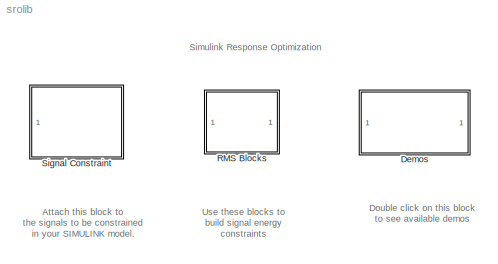
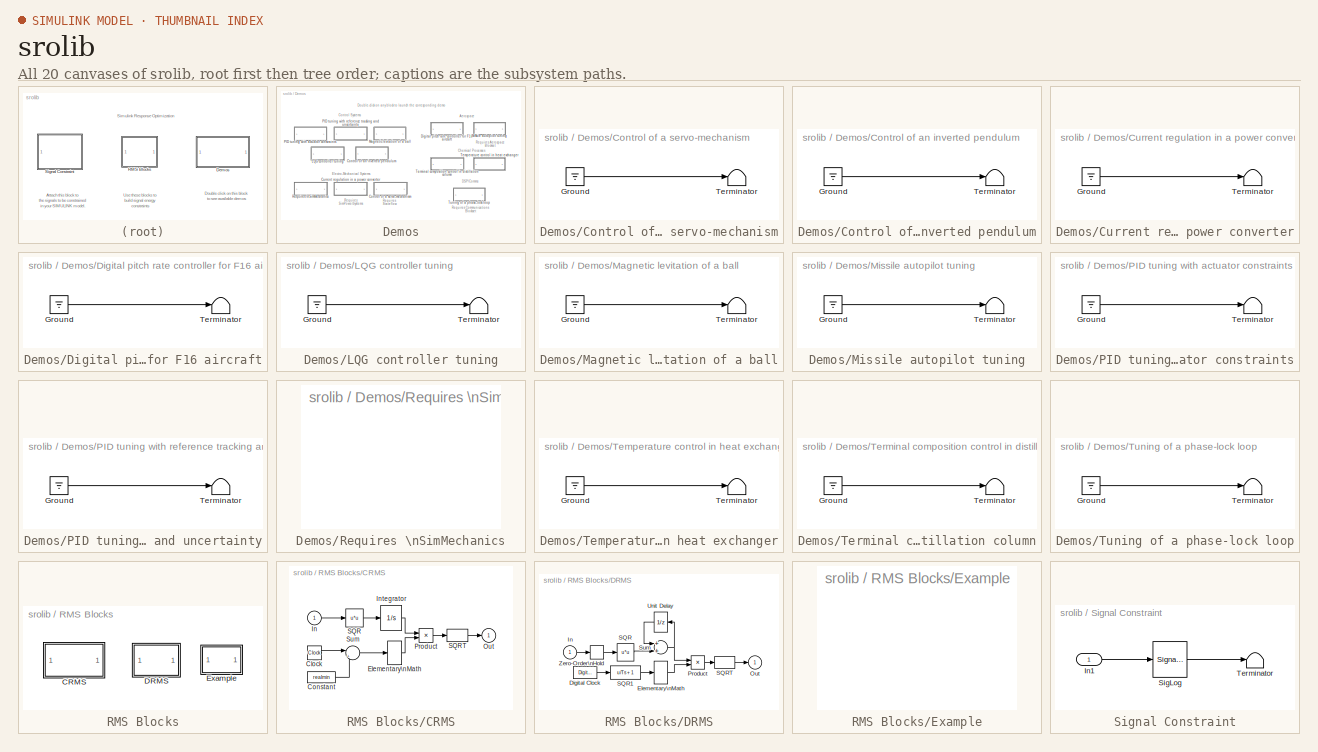
[diagram: thumbnail index - all 20 canvases of the model, root first then tree order]
MODEL srolib
KIND library
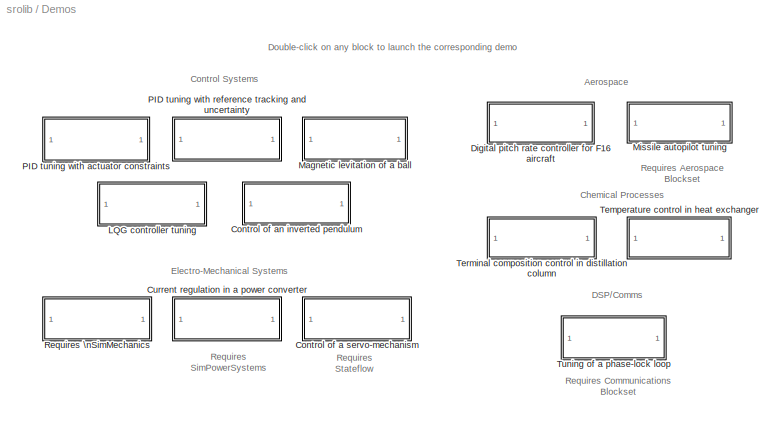
BLOCK [SubSystem] Demos
  MaskDisplay = disp('Response\\nOptimization\\nDemos')
  MaskIconFrame = on
  MaskIconOpaque = on
  MaskIconRotate = none
  MaskIconUnits = autoscale
  MinAlgLoopOccurrences = off
  Ports = []
  PropExecContextAcrossSSBoundary = on
  RTWSystemCode = Auto
  TreatAsAtomicUnit = off
BLOCK [SubSystem] Demos/Control of a servo-mechanism
  MaskDisplay = disp('Servomechanism')
  MaskEnableString = on
  MaskIconFrame = on
  MaskIconOpaque = on
  MaskIconRotate = none
  MaskIconUnits = autoscale
  MaskPromptString = Nedded to invoke correct OpenFcn from Browser:
  MaskStyleString = edit
  MaskToolTipString = on
  MaskTunableValueString = off
  MaskVariables = A=@1;
  MaskVisibilityString = on
  MinAlgLoopOccurrences = off
  OpenFcn = open_system('servo_demo')
  Ports = []
  PropExecContextAcrossSSBoundary = on
  RTWSystemCode = Auto
  TreatAsAtomicUnit = off
BLOCK [Ground] Demos/Control of a servo-mechanism/Ground
BLOCK [Terminator] Demos/Control of a servo-mechanism/Terminator
BLOCK [SubSystem] Demos/Control of an inverted pendulum
  MaskDisplay = disp('Inverted Pendulum')
  MaskEnableString = on
  MaskIconFrame = on
  MaskIconOpaque = on
  MaskIconRotate = none
  MaskIconUnits = autoscale
  MaskPromptString = Nedded to invoke correct OpenFcn from Browser:
  MaskStyleString = edit
  MaskToolTipString = on
  MaskTunableValueString = off
  MaskVariables = A=@1;
  MaskVisibilityString = on
  MinAlgLoopOccurrences = off
  OpenFcn = open_system('pendulum_demo')
  Ports = []
  PropExecContextAcrossSSBoundary = on
  RTWSystemCode = Auto
  TreatAsAtomicUnit = off
BLOCK [Ground] Demos/Control of an inverted pendulum/Ground
BLOCK [Terminator] Demos/Control of an inverted pendulum/Terminator
BLOCK [SubSystem] Demos/Current regulation in a power converter
  MaskDisplay = disp('Power Converter')
  MaskEnableString = on
  MaskIconFrame = on
  MaskIconOpaque = on
  MaskIconRotate = none
  MaskIconUnits = autoscale
  MaskPromptString = Nedded to invoke correct OpenFcn from Browser:
  MaskStyleString = edit
  MaskToolTipString = on
  MaskTunableValueString = off
  MaskVariables = A=@1;
  MaskVisibilityString = on
  MinAlgLoopOccurrences = off
  OpenFcn = open_system('power_demo')
  Ports = []
  PropExecContextAcrossSSBoundary = on
  RTWSystemCode = Auto
  TreatAsAtomicUnit = off
BLOCK [Ground] Demos/Current regulation in a power converter/Ground
BLOCK [Terminator] Demos/Current regulation in a power converter/Terminator
BLOCK [SubSystem] Demos/Digital pitch rate controller for F16 aircraft
  MaskDisplay = disp('Pitch Rate Control')
  MaskEnableString = on
  MaskIconFrame = on
  MaskIconOpaque = on
  MaskIconRotate = none
  MaskIconUnits = autoscale
  MaskPromptString = Nedded to invoke correct OpenFcn from Browser:
  MaskStyleString = edit
  MaskToolTipString = on
  MaskTunableValueString = off
  MaskVariables = A=@1;
  MaskVisibilityString = on
  MinAlgLoopOccurrences = off
  OpenFcn = open_system('pitchrate_demo')
  Ports = []
  PropExecContextAcrossSSBoundary = on
  RTWSystemCode = Auto
  TreatAsAtomicUnit = off
BLOCK [Ground] Demos/Digital pitch rate controller for F16 aircraft/Ground
BLOCK [Terminator] Demos/Digital pitch rate controller for F16 aircraft/Terminator
BLOCK [SubSystem] Demos/LQG controller tuning
  MaskDisplay = disp('LQG Controller')
  MaskEnableString = on
  MaskIconFrame = on
  MaskIconOpaque = on
  MaskIconRotate = none
  MaskIconUnits = autoscale
  MaskPromptString = Nedded to invoke correct OpenFcn from Browser:
  MaskStyleString = edit
  MaskToolTipString = on
  MaskTunableValueString = off
  MaskVariables = A=@1;
  MaskVisibilityString = on
  MinAlgLoopOccurrences = off
  OpenFcn = open_system('lqg_demo')
  Ports = []
  PropExecContextAcrossSSBoundary = on
  RTWSystemCode = Auto
  TreatAsAtomicUnit = off
BLOCK [Ground] Demos/LQG controller tuning/Ground
BLOCK [Terminator] Demos/LQG controller tuning/Terminator
BLOCK [SubSystem] Demos/Magnetic levitation of a ball
  MaskDisplay = disp('Magnetic Levitation')
  MaskEnableString = on
  MaskIconFrame = on
  MaskIconOpaque = on
  MaskIconRotate = none
  MaskIconUnits = autoscale
  MaskPromptString = Nedded to invoke correct OpenFcn from Browser:
  MaskStyleString = edit
  MaskToolTipString = on
  MaskTunableValueString = off
  MaskVariables = A=@1;
  MaskVisibilityString = on
  MinAlgLoopOccurrences = off
  OpenFcn = open_system('maglev_demo')
  Ports = []
  PropExecContextAcrossSSBoundary = on
  RTWSystemCode = Auto
  TreatAsAtomicUnit = off
BLOCK [Ground] Demos/Magnetic levitation of a ball/Ground
BLOCK [Terminator] Demos/Magnetic levitation of a ball/Terminator
BLOCK [SubSystem] Demos/Missile autopilot tuning
  MaskDisplay = disp('Missile Autopilot')
  MaskEnableString = on
  MaskIconFrame = on
  MaskIconOpaque = on
  MaskIconRotate = none
  MaskIconUnits = autoscale
  MaskPromptString = Nedded to invoke correct OpenFcn from Browser:
  MaskStyleString = edit
  MaskToolTipString = on
  MaskTunableValueString = off
  MaskVariables = A=@1;
  MaskVisibilityString = on
  MinAlgLoopOccurrences = off
  OpenFcn = open_system('missile_demo')
  Ports = []
  PropExecContextAcrossSSBoundary = on
  RTWSystemCode = Auto
  TreatAsAtomicUnit = off
BLOCK [Ground] Demos/Missile autopilot tuning/Ground
BLOCK [Terminator] Demos/Missile autopilot tuning/Terminator
BLOCK [SubSystem] Demos/PID tuning with actuator constraints
  MaskDisplay = disp('PID Tuning 1')
  MaskEnableString = on
  MaskIconFrame = on
  MaskIconOpaque = on
  MaskIconRotate = none
  MaskIconUnits = autoscale
  MaskPromptString = Nedded to invoke correct OpenFcn from Browser:
  MaskStyleString = edit
  MaskToolTipString = on
  MaskTunableValueString = off
  MaskVariables = A=@1;
  MaskVisibilityString = on
  MinAlgLoopOccurrences = off
  OpenFcn = open_system('pidtune_demo')
  Ports = []
  PropExecContextAcrossSSBoundary = on
  RTWSystemCode = Auto
  TreatAsAtomicUnit = off
BLOCK [Ground] Demos/PID tuning with actuator constraints/Ground
BLOCK [Terminator] Demos/PID tuning with actuator constraints/Terminator
BLOCK [SubSystem] Demos/PID tuning with reference tracking and uncertainty
  MaskDisplay = disp('PID Tuning 2')
  MaskEnableString = on
  MaskIconFrame = on
  MaskIconOpaque = on
  MaskIconRotate = none
  MaskIconUnits = autoscale
  MaskPromptString = Nedded to invoke correct OpenFcn from Browser:
  MaskStyleString = edit
  MaskToolTipString = on
  MaskTunableValueString = off
  MaskVariables = A=@1;
  MaskVisibilityString = on
  MinAlgLoopOccurrences = off
  OpenFcn = open_system('pidtrack_demo')
  Ports = []
  PropExecContextAcrossSSBoundary = on
  RTWSystemCode = Auto
  TreatAsAtomicUnit = off
BLOCK [Ground] Demos/PID tuning with reference tracking and uncertainty/Ground
BLOCK [Terminator] Demos/PID tuning with reference tracking and uncertainty/Terminator
BLOCK [SubSystem] Demos/Requires \nSimMechanics
  MaskDisplay = disp('Stewart Platform')
  MaskEnableString = on
  MaskIconFrame = on
  MaskIconOpaque = on
  MaskIconRotate = none
  MaskIconUnits = autoscale
  MaskPromptString = Nedded to invoke correct OpenFcn from Browser:
  MaskStyleString = edit
  MaskToolTipString = on
  MaskTunableValueString = off
  MaskVariables = A=@1;
  MaskVisibilityString = on
  MinAlgLoopOccurrences = off
  OpenFcn = open_system('stewart_demo')
  Ports = []
  PropExecContextAcrossSSBoundary = on
  RTWSystemCode = Auto
  TreatAsAtomicUnit = off
BLOCK [SubSystem] Demos/Temperature control in heat exchanger
  MaskDisplay = disp('Heat Exchanger')
  MaskEnableString = on
  MaskIconFrame = on
  MaskIconOpaque = on
  MaskIconRotate = none
  MaskIconUnits = autoscale
  MaskPromptString = Nedded to invoke correct OpenFcn from Browser:
  MaskStyleString = edit
  MaskToolTipString = on
  MaskTunableValueString = off
  MaskVariables = A=@1;
  MaskVisibilityString = on
  MinAlgLoopOccurrences = off
  OpenFcn = open_system('heatex_demo')
  Ports = []
  PropExecContextAcrossSSBoundary = on
  RTWSystemCode = Auto
  TreatAsAtomicUnit = off
BLOCK [Ground] Demos/Temperature control in heat exchanger/Ground
BLOCK [Terminator] Demos/Temperature control in heat exchanger/Terminator
BLOCK [SubSystem] Demos/Terminal composition control in distillation column
  MaskDisplay = disp('Distillation Column')
  MaskEnableString = on
  MaskIconFrame = on
  MaskIconOpaque = on
  MaskIconRotate = none
  MaskIconUnits = autoscale
  MaskPromptString = Nedded to invoke correct OpenFcn from Browser:
  MaskStyleString = edit
  MaskToolTipString = on
  MaskTunableValueString = off
  MaskVariables = A=@1;
  MaskVisibilityString = on
  MinAlgLoopOccurrences = off
  OpenFcn = open_system('distillation_demo')
  Ports = []
  PropExecContextAcrossSSBoundary = on
  RTWSystemCode = Auto
  TreatAsAtomicUnit = off
BLOCK [Ground] Demos/Terminal composition control in distillation column/Ground
BLOCK [Terminator] Demos/Terminal composition control in distillation column/Terminator
BLOCK [SubSystem] Demos/Tuning of a phase-lock loop
  MaskDisplay = disp('Phase Lock Loop')
  MaskEnableString = on
  MaskIconFrame = on
  MaskIconOpaque = on
  MaskIconRotate = none
  MaskIconUnits = autoscale
  MaskPromptString = Nedded to invoke correct OpenFcn from Browser:
  MaskStyleString = edit
  MaskToolTipString = on
  MaskTunableValueString = off
  MaskVariables = A=@1;
  MaskVisibilityString = on
  MinAlgLoopOccurrences = off
  OpenFcn = open_system('phaselock_demo')
  Ports = []
  PropExecContextAcrossSSBoundary = on
  RTWSystemCode = Auto
  TreatAsAtomicUnit = off
BLOCK [Ground] Demos/Tuning of a phase-lock loop/Ground
BLOCK [Terminator] Demos/Tuning of a phase-lock loop/Terminator
BLOCK [SubSystem] RMS Blocks
  MaskDisplay = disp('RMS\\nBlocks')
  MaskIconFrame = on
  MaskIconOpaque = on
  MaskIconRotate = none
  MaskIconUnits = autoscale
  MinAlgLoopOccurrences = off
  Ports = []
  PropExecContextAcrossSSBoundary = on
  RTWSystemCode = Auto
  TreatAsAtomicUnit = off
BLOCK [SubSystem] RMS Blocks/CRMS
  MaskDescription = Computes the cumulative root mean squared value of the input signal. The output is continuous.
  MaskDisplay = disp('Continuous\\nRMS');
  MaskIconFrame = on
  MaskIconOpaque = on
  MaskIconRotate = none
  MaskIconUnits = autoscale
  MaskType = Continuous RMS Value Block
  MinAlgLoopOccurrences = off
  Ports = [1, 1]
  PropExecContextAcrossSSBoundary = on
  RTWSystemCode = Auto
  TreatAsAtomicUnit = off
BLOCK [Clock] RMS Blocks/CRMS/Clock
  Decimation = 10
BLOCK [Constant] RMS Blocks/CRMS/Constant
  Value = realmin
BLOCK [ElementaryMath] RMS Blocks/CRMS/Elementary\nMath
  Operator = reciprocal
  Ports = [1, 1]
BLOCK [Inport] RMS Blocks/CRMS/In
  IconDisplay = Port number
  LatchInput = off
BLOCK [Integrator] RMS Blocks/CRMS/Integrator
  LimitOutput = on
  LowerSaturationLimit = 0
  Ports = [1, 1]
BLOCK [Outport] RMS Blocks/CRMS/Out
  BusOutputAsStruct = off
  IconDisplay = Port number
  InitialOutput = 0
BLOCK [Product] RMS Blocks/CRMS/Product
  Ports = [2, 1]
  RndMeth = Floor
BLOCK [Fcn] RMS Blocks/CRMS/SQR
  Expr = u*u
BLOCK [ElementaryMath] RMS Blocks/CRMS/SQRT
  Operator = sqrt
  Ports = [1, 1]
BLOCK [Sum] RMS Blocks/CRMS/Sum
  IconShape = round
  InputSameDT = off
  Inputs = |++
  OutDataTypeMode = Inherit via internal rule
  Ports = [2, 1]
  SaturateOnIntegerOverflow = off
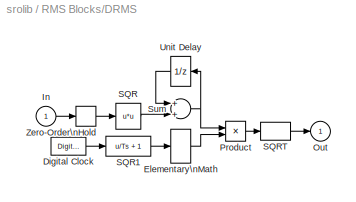
BLOCK [SubSystem] RMS Blocks/DRMS
  MaskDescription = Computes the cumulative root mean squared value of the sampled input signal. The output is discrete.
  MaskDisplay = disp('Discrete\\nRMS')
  MaskEnableString = on
  MaskIconFrame = on
  MaskIconOpaque = on
  MaskIconRotate = none
  MaskIconUnits = autoscale
  MaskPromptString = Sampling Interval (s) :
  MaskStyleString = edit
  MaskToolTipString = on
  MaskTunableValueString = on
  MaskType = Discrete RMS Value Block
  MaskValueString = 1
  MaskVariables = Ts=@1;
  MaskVisibilityString = on
  MinAlgLoopOccurrences = off
  Ports = [1, 1]
  PropExecContextAcrossSSBoundary = on
  RTWSystemCode = Auto
  TreatAsAtomicUnit = off
BLOCK [DigitalClock] RMS Blocks/DRMS/Digital Clock
  SampleTime = Ts
BLOCK [ElementaryMath] RMS Blocks/DRMS/Elementary\nMath
  Operator = reciprocal
  Ports = [1, 1]
BLOCK [Inport] RMS Blocks/DRMS/In
  IconDisplay = Port number
  LatchInput = off
BLOCK [Outport] RMS Blocks/DRMS/Out
  BusOutputAsStruct = off
  IconDisplay = Port number
  InitialOutput = 0
BLOCK [Product] RMS Blocks/DRMS/Product
  Ports = [2, 1]
  RndMeth = Floor
BLOCK [Fcn] RMS Blocks/DRMS/SQR
  Expr = u*u
BLOCK [Fcn] RMS Blocks/DRMS/SQR1
  Expr = u/Ts + 1
BLOCK [ElementaryMath] RMS Blocks/DRMS/SQRT
  Operator = sqrt
  Ports = [1, 1]
BLOCK [Sum] RMS Blocks/DRMS/Sum
  Ports = [2, 1]
BLOCK [UnitDelay] RMS Blocks/DRMS/Unit Delay
  SampleTime = Ts
BLOCK [ZeroOrderHold] RMS Blocks/DRMS/Zero-Order\nHold
  SampleTime = Ts
BLOCK [SubSystem] RMS Blocks/Example
  MaskDisplay = disp('DEMO')
  MaskIconFrame = on
  MaskIconOpaque = on
  MaskIconRotate = none
  MaskIconUnits = autoscale
  MaskType = DEMO
  MinAlgLoopOccurrences = off
  OpenFcn = rmsdemo
  Ports = []
  PropExecContextAcrossSSBoundary = on
  RTWSystemCode = Auto
  TreatAsAtomicUnit = off
BLOCK [SubSystem] Signal Constraint
  CloseFcn = SignalConstrMask('close',gcb)
  CopyFcn = SignalConstrMask('copy',gcb)
  DeleteFcn = SignalConstrMask('delete',gcb)
  LoadFcn = SignalConstrMask('load',gcb)
  MaskCallbackString = ||||
  MaskDisplay = plot([0:10],[-.5 1.5 .6 1.3 .8 1.1 .95 1.02 .99 1 1])\n
  MaskEnableString = on,on,on,on,on
  MaskIconFrame = on
  MaskIconOpaque = on
  MaskIconRotate = none
  MaskIconUnits = autoscale
  MaskInitialization = % Apply logID to data logging port\nb = find_system(gcb,'FollowLinks','on','LookUnderMasks','all','BlockType','SignalConversion');\nh = get_param(b{1},'PortHandles');\nset(h.Outport,'DataLoggingNameMode','custom',...\n	'DataLoggingName',LogID)
  MaskPromptString = Dialog position|Save constraint in|Save constraint as|Data Logging ID|Y axis limits
  MaskSelfModifiable = on
  MaskStyleString = edit,popup(workspace|MAT file),edit,edit,edit
  MaskTabNameString = ,,,,
  MaskToolTipString = on,on,on,on,on
  MaskTunableValueString = off,off,off,off,off
  MaskType = Signal Constraint
  MaskValueString = [0.1 0.25 0.45 0.31]|workspace||SRO_DataLog_1|
  MaskVarAliasString = ,,,,
  MaskVariables = DialogPosition=&1;SaveIn=&2;SaveAs=&3;LogID=&4;Ylim=&5;
  MaskVisibilityString = off,off,off,on,on
  MinAlgLoopOccurrences = off
  ModelCloseFcn = SignalConstrMask('modelclose',gcb)
  NameChangeFcn = SignalConstrMask('namechange',gcb)
  OpenFcn = SignalConstrMask('open',gcb)
  Ports = [1]
  PreSaveFcn = SignalConstrMask('save',gcb)
  PropExecContextAcrossSSBoundary = on
  RTWSystemCode = Auto
  TreatAsAtomicUnit = off
  UndoDeleteFcn = SignalConstrMask('undelete',gcb)
BLOCK [Inport] Signal Constraint/In1
  IconDisplay = Port number
  LatchInput = off
BLOCK [SignalConversion] Signal Constraint/SigLog
  ConversionOutput = Contiguous copy
  OverrideOpt = on
BLOCK [Terminator] Signal Constraint/Terminator
ANNOTATION (root): Attach this block to\nthe signals to be constrained\nin your SIMULINK model.
ANNOTATION (root): Double click on this block\nto see available demos
ANNOTATION (root): Simulink Response Optimization
ANNOTATION (root): Use these blocks to\nbuild signal energy\nconstraints
ANNOTATION Demos: Aerospace
ANNOTATION Demos: Chemical Processes
ANNOTATION Demos: Control Systems
ANNOTATION Demos: DSP/Comms
ANNOTATION Demos: Double-click on any block to launch the corresponding demo
ANNOTATION Demos: Electro-Mechanical Systems
ANNOTATION Demos: Requires Aerospace \nBlockset
ANNOTATION Demos: Requires Communications \nBlockset
ANNOTATION Demos: Requires \nSimPowerSystems\n
ANNOTATION Demos: Requires \nStateflow\n
LINE Demos/Control of a servo-mechanism/Ground:1 -> Demos/Control of a servo-mechanism/Terminator:1
LINE Demos/Control of an inverted pendulum/Ground:1 -> Demos/Control of an inverted pendulum/Terminator:1
LINE Demos/Current regulation in a power converter/Ground:1 -> Demos/Current regulation in a power converter/Terminator:1
LINE Demos/Digital pitch rate controller for F16 aircraft/Ground:1 -> Demos/Digital pitch rate controller for F16 aircraft/Terminator:1
LINE Demos/LQG controller tuning/Ground:1 -> Demos/LQG controller tuning/Terminator:1
LINE Demos/Magnetic levitation of a ball/Ground:1 -> Demos/Magnetic levitation of a ball/Terminator:1
LINE Demos/Missile autopilot tuning/Ground:1 -> Demos/Missile autopilot tuning/Terminator:1
LINE Demos/PID tuning with actuator constraints/Ground:1 -> Demos/PID tuning with actuator constraints/Terminator:1
LINE Demos/PID tuning with reference tracking and uncertainty/Ground:1 -> Demos/PID tuning with reference tracking and uncertainty/Terminator:1
LINE Demos/Temperature control in heat exchanger/Ground:1 -> Demos/Temperature control in heat exchanger/Terminator:1
LINE Demos/Terminal composition control in distillation column/Ground:1 -> Demos/Terminal composition control in distillation column/Terminator:1
LINE Demos/Tuning of a phase-lock loop/Ground:1 -> Demos/Tuning of a phase-lock loop/Terminator:1
LINE RMS Blocks/CRMS/Clock:1 -> RMS Blocks/CRMS/Sum:1
LINE RMS Blocks/CRMS/Constant:1 -> RMS Blocks/CRMS/Sum:2
LINE RMS Blocks/CRMS/Elementary\nMath:1 -> RMS Blocks/CRMS/Product:2
LINE RMS Blocks/CRMS/In:1 -> RMS Blocks/CRMS/SQR:1
LINE RMS Blocks/CRMS/Integrator:1 -> RMS Blocks/CRMS/Product:1
LINE RMS Blocks/CRMS/Product:1 -> RMS Blocks/CRMS/SQRT:1
LINE RMS Blocks/CRMS/SQR:1 -> RMS Blocks/CRMS/Integrator:1
LINE RMS Blocks/CRMS/SQRT:1 -> RMS Blocks/CRMS/Out:1
LINE RMS Blocks/CRMS/Sum:1 -> RMS Blocks/CRMS/Elementary\nMath:1
LINE RMS Blocks/DRMS/Digital Clock:1 -> RMS Blocks/DRMS/SQR1:1
LINE RMS Blocks/DRMS/Elementary\nMath:1 -> RMS Blocks/DRMS/Product:2
LINE RMS Blocks/DRMS/In:1 -> RMS Blocks/DRMS/Zero-Order\nHold:1
LINE RMS Blocks/DRMS/Product:1 -> RMS Blocks/DRMS/SQRT:1
LINE RMS Blocks/DRMS/SQR1:1 -> RMS Blocks/DRMS/Elementary\nMath:1
LINE RMS Blocks/DRMS/SQR:1 -> RMS Blocks/DRMS/Sum:2
LINE RMS Blocks/DRMS/SQRT:1 -> RMS Blocks/DRMS/Out:1
NET RMS Blocks/DRMS/Sum:1 -> RMS Blocks/DRMS/Product:1, RMS Blocks/DRMS/Unit Delay:1
LINE RMS Blocks/DRMS/Unit Delay:1 -> RMS Blocks/DRMS/Sum:1
LINE RMS Blocks/DRMS/Zero-Order\nHold:1 -> RMS Blocks/DRMS/SQR:1
LINE Signal Constraint/In1:1 -> Signal Constraint/SigLog:1
LINE Signal Constraint/SigLog:1 -> Signal Constraint/Terminator:1
note: NET lines group one-source signal fan-out (src -> all destinations, sorted); 1:1 wires keep LINE
